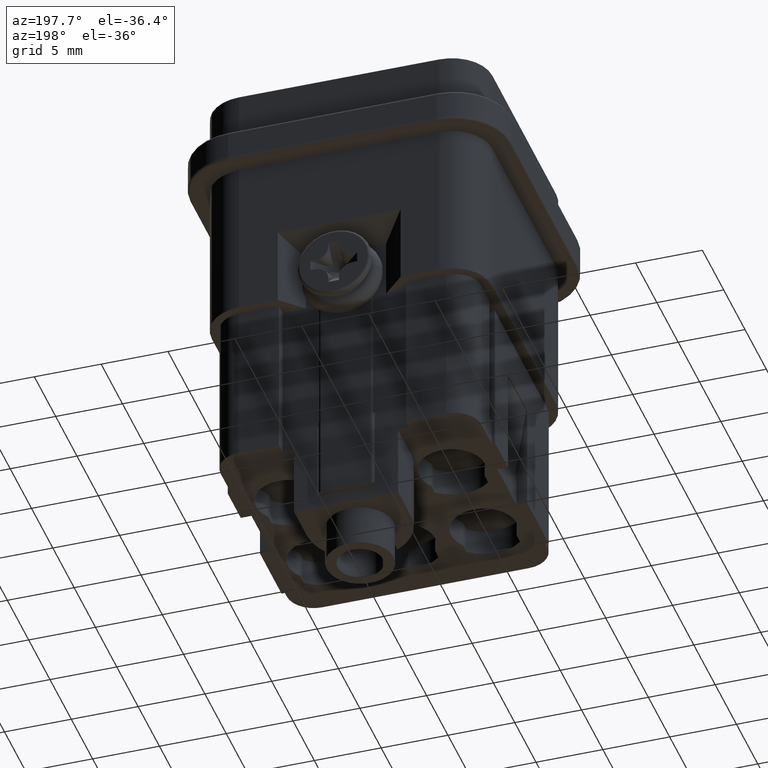
[diagram: clean part render]
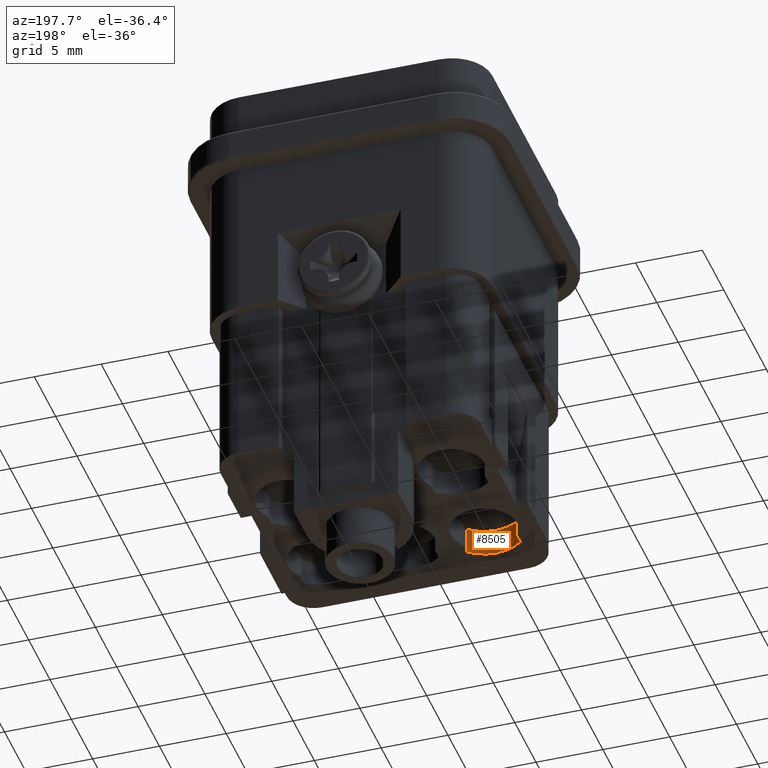
[diagram: same view with one face highlighted and labeled with its STEP entity id]
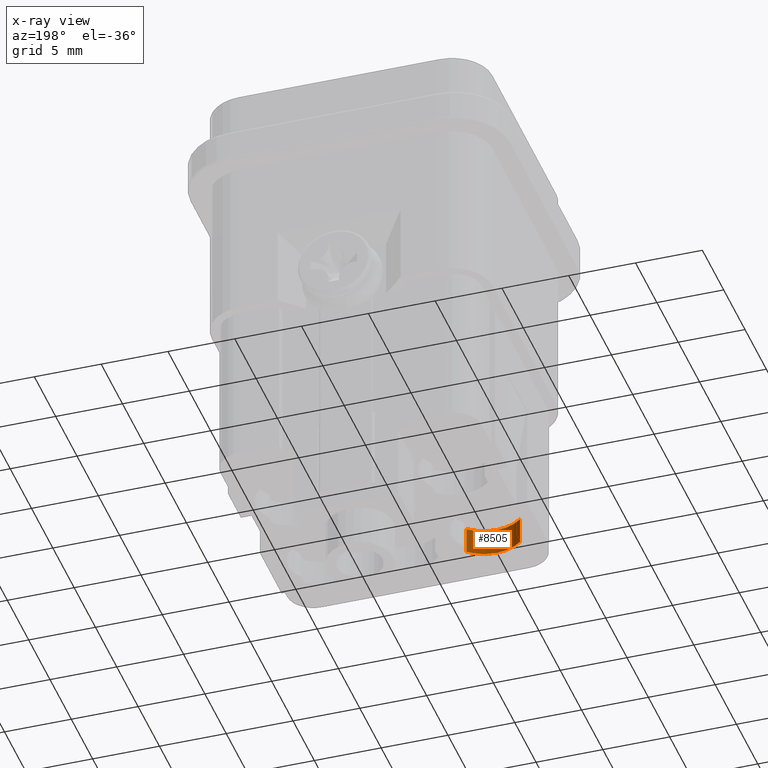
[diagram: x-ray of the same camera — body ghosted, the highlighted face saturated]
A machine part, auxiliary view. The second image highlights one B-rep face of the part: STEP entity #8505.
The next image is the same camera in x-ray: the body ghosted, the highlighted face saturated — about 0% of this face is hidden behind the body in this view.
In plain terms, the highlighted cylindrical surface (partial cylindrical patch) has radius 3 mm, axis along (0, 0, -1).
Its self-contained STEP definition (entity closure, byte-faithful):
#1752=CARTESIAN_POINT('',(-6.1E0,-4.3E0,-2.1E0));
#1753=DIRECTION('',(0.E0,0.E0,-1.E0));
#1754=DIRECTION('',(6.666666666663E-1,-7.453559925002E-1,0.E0));
#1755=AXIS2_PLACEMENT_3D('',#1752,#1753,#1754);
#3334=CARTESIAN_POINT('',(-6.1E0,-4.3E0,-1.E-1));
#3335=DIRECTION('',(0.E0,0.E0,-1.E0));
#3336=DIRECTION('',(6.666666666663E-1,-7.453559925002E-1,0.E0));
#3337=AXIS2_PLACEMENT_3D('',#3334,#3335,#3336);
#3351=DIRECTION('',(-1.438849039914E-13,1.771915947302E-13,-1.E0));
#3352=VECTOR('',#3351,2.E0);
#3353=CARTESIAN_POINT('',(-8.099999999999E0,-6.536067977500E0,-1.E-1));
#3354=LINE('',#3353,#3352);
#3355=DIRECTION('',(-5.684341886081E-14,-1.731947918415E-13,1.E0));
#3356=VECTOR('',#3355,2.E0);
#3357=CARTESIAN_POINT('',(-4.100000000001E0,-6.536067977500E0,-2.1E0));
#3358=LINE('',#3357,#3356);
#3774=CARTESIAN_POINT('',(-4.100000000001E0,-6.536067977500E0,-2.1E0));
#3776=VERTEX_POINT('',#3774);
#3778=CARTESIAN_POINT('',(-8.1E0,-6.536067977500E0,-2.1E0));
#3779=VERTEX_POINT('',#3778);
#3916=CARTESIAN_POINT('',(-4.100000000001E0,-6.536067977501E0,-1.E-1));
#3918=VERTEX_POINT('',#3916);
#3920=CARTESIAN_POINT('',(-8.099999999999E0,-6.536067977500E0,-1.E-1));
#3921=VERTEX_POINT('',#3920);
#8494=CARTESIAN_POINT('',(-6.1E0,-4.3E0,-1.E-1));
#8495=DIRECTION('',(0.E0,0.E0,-1.E0));
#8496=DIRECTION('',(-1.E0,0.E0,0.E0));
#8497=AXIS2_PLACEMENT_3D('',#8494,#8495,#8496);
#8498=CYLINDRICAL_SURFACE('',#8497,3.E0);
#8499=ORIENTED_EDGE('',*,*,#8460,.T.);
#8500=ORIENTED_EDGE('',*,*,#8489,.T.);
#8501=ORIENTED_EDGE('',*,*,#6525,.F.);
#8502=ORIENTED_EDGE('',*,*,#8442,.T.);
#8503=EDGE_LOOP('',(#8499,#8500,#8501,#8502));
#8504=FACE_OUTER_BOUND('',#8503,.F.);
#8505=ADVANCED_FACE('',(#8504),#8498,.F.);
#1756=CIRCLE('',#1755,3.E0);
#3338=CIRCLE('',#3337,3.E0);
#6525=EDGE_CURVE('',#3776,#3779,#1756,.T.);
#8442=EDGE_CURVE('',#3776,#3918,#3358,.T.);
#8460=EDGE_CURVE('',#3918,#3921,#3338,.T.);
#8489=EDGE_CURVE('',#3921,#3779,#3354,.T.);